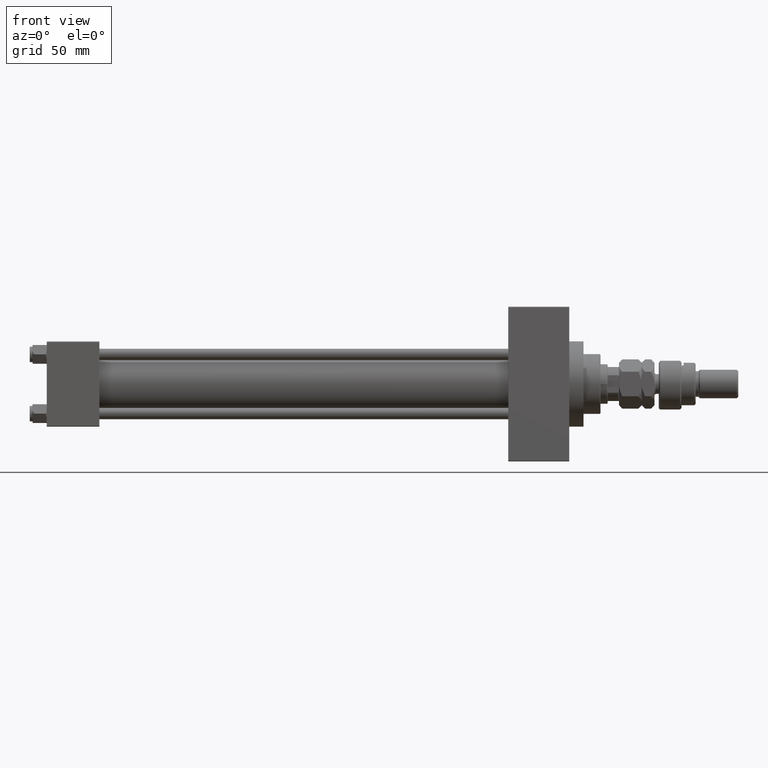
[diagram: clean part render]
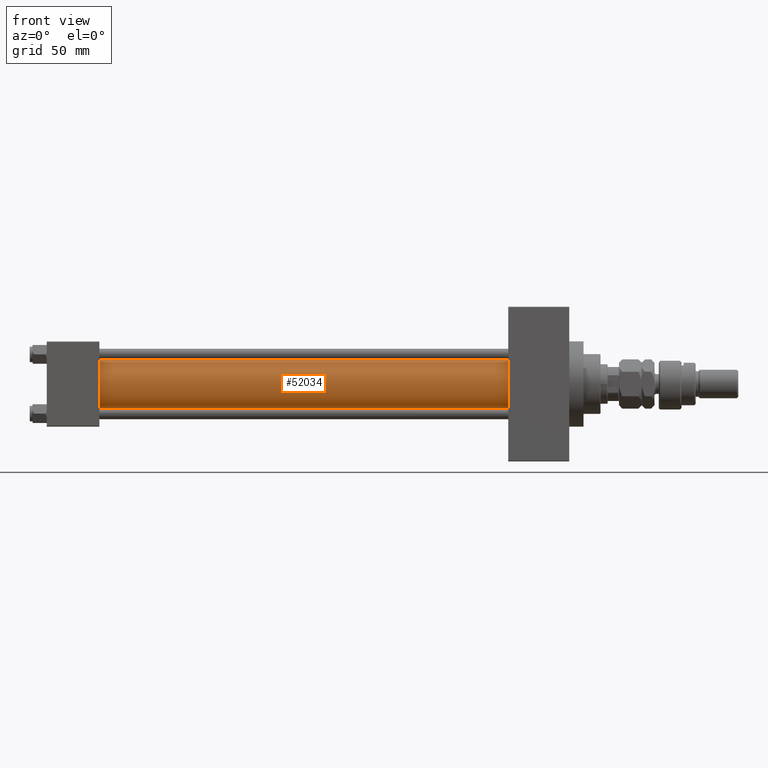
[diagram: same view with one face highlighted and labeled with its STEP entity id]
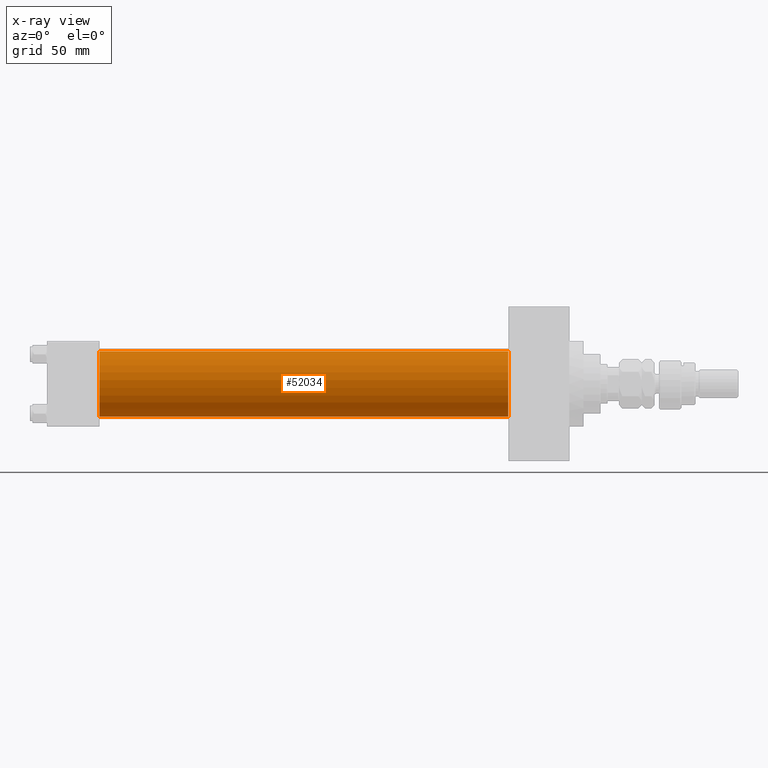
[diagram: x-ray of the same camera — body ghosted, the highlighted face saturated]
A machine part, front view. The second image highlights one B-rep face of the part: STEP entity #52034.
The next image is the same camera in x-ray: the body ghosted, the highlighted face saturated — about 0% of this face is hidden behind the body in this view.
In plain terms, the highlighted cylindrical surface (edge-blend (fillet) strip) has radius 23 mm, axis along (-1, -0, -0).
Its self-contained STEP definition (entity closure, byte-faithful):
#1222 = LINE ( 'NONE', #33351, #21526 ) ;
#1346 = VERTEX_POINT ( 'NONE', #18335 ) ;
#1992 = CARTESIAN_POINT ( 'NONE',  ( 36.99999999999997868, -2.602085213965210642E-15, 23.00000000000000000 ) ) ;
#2210 = CARTESIAN_POINT ( 'NONE',  ( 36.99999999999997868, 2.146024240737016609E-16, -23.00000000000000000 ) ) ;
#5160 = CYLINDRICAL_SURFACE ( 'NONE', #45919, 23.00000000000000000 ) ;
#7534 = EDGE_LOOP ( 'NONE', ( #28923, #24127, #47392, #27995 ) ) ;
#7845 = VERTEX_POINT ( 'NONE', #21443 ) ;
#11576 = CARTESIAN_POINT ( 'NONE',  ( 324.9999999999999432, -2.602085213965210642E-15, 0.000000000000000000 ) ) ;
#11834 = DIRECTION ( 'NONE',  ( 1.000000000000000000, 0.000000000000000000, 0.000000000000000000 ) ) ;
#14433 = VECTOR ( 'NONE', #29007, 1000.000000000000000 ) ;
#15611 = LINE ( 'NONE', #18634, #14433 ) ;
#18054 = DIRECTION ( 'NONE',  ( -1.000000000000000000, -0.000000000000000000, -0.000000000000000000 ) ) ;
#18335 = CARTESIAN_POINT ( 'NONE',  ( 324.9999999999999432, 2.146024240737016609E-16, -23.00000000000000000 ) ) ;
#18634 = CARTESIAN_POINT ( 'NONE',  ( 324.9999999999999432, -2.602085213965210642E-15, 23.00000000000000000 ) ) ;
#19941 = CARTESIAN_POINT ( 'NONE',  ( 36.99999999999997868, -2.602085213965210642E-15, 0.000000000000000000 ) ) ;
#21443 = CARTESIAN_POINT ( 'NONE',  ( 324.9999999999999432, -2.602085213965210642E-15, 23.00000000000000000 ) ) ;
#21526 = VECTOR ( 'NONE', #49460, 1000.000000000000000 ) ;
#21823 = EDGE_CURVE ( 'NONE', #40791, #37256, #38858, .T. ) ;
#22390 = CIRCLE ( 'NONE', #51874, 23.00000000000000000 ) ;
#24127 = ORIENTED_EDGE ( 'NONE', *, *, #34015, .F. ) ;
#24384 = DIRECTION ( 'NONE',  ( 0.000000000000000000, 0.000000000000000000, 1.000000000000000000 ) ) ;
#27636 = DIRECTION ( 'NONE',  ( 0.000000000000000000, 0.000000000000000000, -1.000000000000000000 ) ) ;
#27995 = ORIENTED_EDGE ( 'NONE', *, *, #21823, .T. ) ;
#28923 = ORIENTED_EDGE ( 'NONE', *, *, #33657, .F. ) ;
#29007 = DIRECTION ( 'NONE',  ( -1.000000000000000000, -0.000000000000000000, -0.000000000000000000 ) ) ;
#33351 = CARTESIAN_POINT ( 'NONE',  ( 324.9999999999999432, 2.146024240737016609E-16, -23.00000000000000000 ) ) ;
#33657 = EDGE_CURVE ( 'NONE', #1346, #37256, #1222, .T. ) ;
#34015 = EDGE_CURVE ( 'NONE', #7845, #1346, #22390, .T. ) ;
#35983 = DIRECTION ( 'NONE',  ( 1.000000000000000000, -0.000000000000000000, 0.000000000000000000 ) ) ;
#37256 = VERTEX_POINT ( 'NONE', #2210 ) ;
#38070 = FACE_OUTER_BOUND ( 'NONE', #7534, .T. ) ;
#38858 = CIRCLE ( 'NONE', #49840, 23.00000000000000000 ) ;
#40791 = VERTEX_POINT ( 'NONE', #1992 ) ;
#42306 = EDGE_CURVE ( 'NONE', #7845, #40791, #15611, .T. ) ;
#45919 = AXIS2_PLACEMENT_3D ( 'NONE', #50233, #18054, #46001 ) ;
#46001 = DIRECTION ( 'NONE',  ( 0.000000000000000000, 0.000000000000000000, 1.000000000000000000 ) ) ;
#47392 = ORIENTED_EDGE ( 'NONE', *, *, #42306, .T. ) ;
#49460 = DIRECTION ( 'NONE',  ( -1.000000000000000000, -0.000000000000000000, -0.000000000000000000 ) ) ;
#49840 = AXIS2_PLACEMENT_3D ( 'NONE', #19941, #35983, #24384 ) ;
#50233 = CARTESIAN_POINT ( 'NONE',  ( 324.9999999999999432, -2.602085213965210642E-15, 0.000000000000000000 ) ) ;
#51874 = AXIS2_PLACEMENT_3D ( 'NONE', #11576, #11834, #27636 ) ;
#52034 = ADVANCED_FACE ( 'NONE', ( #38070 ), #5160, .T. ) ;